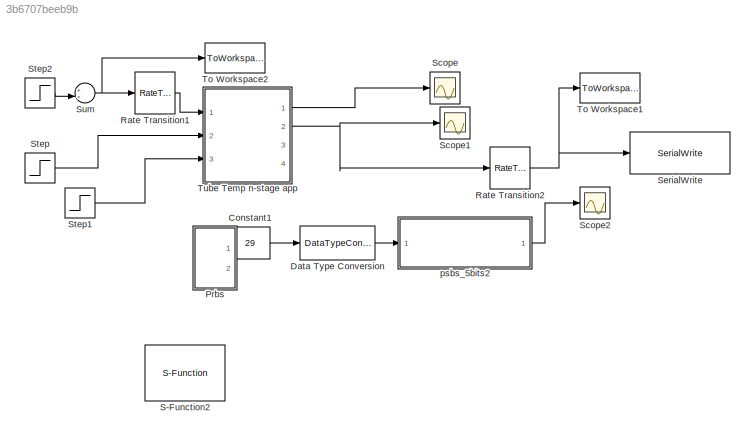
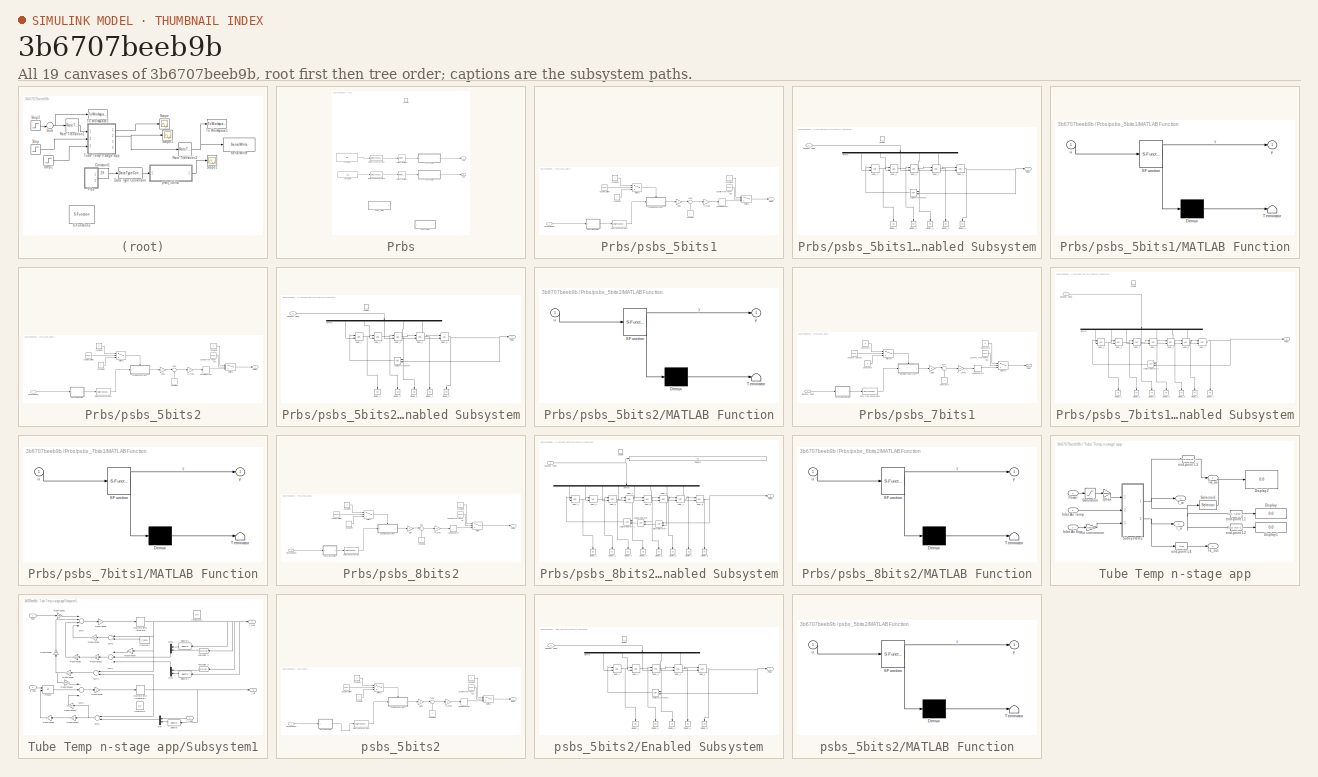
[diagram: thumbnail index - all 19 canvases of the model, root first then tree order]
MODEL slx_3b6707beeb9b
KIND model
CONFIG AbsTol = auto
CONFIG EnableMultiTasking = on
CONFIG FixedStep = auto
CONFIG MaxStep = auto
CONFIG MinStep = auto
CONFIG RelTol = 1e-3
CONFIG SampleTimeConstraint = Unconstrained
CONFIG Solver = FixedStepAuto
CONFIG SolverName = FixedStepAuto
CONFIG StartTime = 0.0
CONFIG StopTime = 20000
BLOCK [Constant] Constant1
  OutDataTypeStr = double
  SampleTime = 1
  Value = 29
BLOCK [DataTypeConversion] Data Type Conversion
  OutDataTypeStr = uint16
  RndMeth = Floor
  SaturateOnIntegerOverflow = off
BLOCK [SubSystem] Prbs
  Commented = on
  Ports = [0, 2, 1]
  RequestExecContextInheritance = off
  Variant = off
BLOCK [Constant] Prbs/Constant1
  OutDataTypeStr = double
  SampleTime = 0.1
  Value = 29
BLOCK [Constant] Prbs/Constant2
  OutDataTypeStr = double
  SampleTime = 0.1
  Value = 30
BLOCK [DataTypeConversion] Prbs/Data Type Conversion
  OutDataTypeStr = uint16
  RndMeth = Floor
  SaturateOnIntegerOverflow = off
BLOCK [DataTypeConversion] Prbs/Data Type Conversion2
  OutDataTypeStr = uint16
  RndMeth = Floor
  SaturateOnIntegerOverflow = off
BLOCK [EnablePort] Prbs/Enable
  Ports = []
BLOCK [Outport] Prbs/Out1
  IconDisplay = Port number
BLOCK [Outport] Prbs/Out2
  IconDisplay = Port number
  Port = 2
BLOCK [RateTransition] Prbs/Rate Transition1
  OutPortSampleTime = 0.1
BLOCK [RateTransition] Prbs/Rate Transition2
  OutPortSampleTime = 0.1
BLOCK [SubSystem] Prbs/psbs_5bits1
  Ports = [1, 1]
  RequestExecContextInheritance = off
  Variant = off
BLOCK [Gain] Prbs/psbs_5bits1/+//- Level1
  Gain = Lv
  OutDataTypeStr = Inherit: Inherit via internal rule
  ParamDataTypeStr = Inherit: Inherit via internal rule
  SampleTime = T
  SaturateOnIntegerOverflow = off
BLOCK [Constant] Prbs/psbs_5bits1/Constant2
  SampleTime = T
BLOCK [Constant] Prbs/psbs_5bits1/Constant4
  SampleTime = T
  Value = 0
BLOCK [Constant] Prbs/psbs_5bits1/Constant5
  SampleTime = T
  Value = 0
BLOCK [Constant] Prbs/psbs_5bits1/Constant6
  SampleTime = T
BLOCK [Reference] Prbs/psbs_5bits1/Counter Free-Running1  REF=simulink/Sources/Counter
Free-Running
  Ports = [0, 1]
  SourceBlock = simulink/Sources/Counter\nFree-Running
  SourceType = Counter Free-Running
BLOCK [Reference] Prbs/psbs_5bits1/Counter Limited  REF=simulink/Sources/Counter
Limited
  Ports = [0, 1]
  SourceBlock = simulink/Sources/Counter\nLimited
  SourceType = Counter Limited
BLOCK [DataTypeConversion] Prbs/psbs_5bits1/Data Type Conversion1
  OutDataTypeStr = int16
  RndMeth = Floor
  SaturateOnIntegerOverflow = off
BLOCK [SubSystem] Prbs/psbs_5bits1/Enabled Subsystem
  Ports = [1, 1, 1]
  RequestExecContextInheritance = off
  TreatAsAtomicUnit = on
  Variant = off
BLOCK [Demux] Prbs/psbs_5bits1/Enabled Subsystem/Demux
  DisplayOption = bar
  Outputs = 5
  Ports = [1, 5]
BLOCK [Display] Prbs/psbs_5bits1/Enabled Subsystem/Display_1
  Decimation = 1
  Ports = [1]
BLOCK [Display] Prbs/psbs_5bits1/Enabled Subsystem/Display_2
  Decimation = 1
  Ports = [1]
BLOCK [Display] Prbs/psbs_5bits1/Enabled Subsystem/Display_3
  Decimation = 1
  Ports = [1]
BLOCK [Display] Prbs/psbs_5bits1/Enabled Subsystem/Display_4
  Decimation = 1
  Ports = [1]
BLOCK [Display] Prbs/psbs_5bits1/Enabled Subsystem/Display_5
  Decimation = 1
  Ports = [1]
BLOCK [EnablePort] Prbs/psbs_5bits1/Enabled Subsystem/Enable
  Ports = []
BLOCK [Logic] Prbs/psbs_5bits1/Enabled Subsystem/Logical Operator2
  AllPortsSameDT = off
  Operator = XOR
  OutDataTypeStr = fixdt(1,16)
  Ports = [2, 1]
  SampleTime = T
BLOCK [Outport] Prbs/psbs_5bits1/Enabled Subsystem/PRBS
  IconDisplay = Port number
BLOCK [Inport] Prbs/psbs_5bits1/Enabled Subsystem/Random Seed
  IconDisplay = Port number
  OutDataTypeStr = int16
BLOCK [Reference] Prbs/psbs_5bits1/Enabled Subsystem/delay_1  REF=simulink/Additional Math
& Discrete/Additional
Discrete/Unit Delay
External IC
  Ports = [2, 1]
  SourceBlock = simulink/Additional Math\n& Discrete/Additional\nDiscrete/Unit Delay\nExternal IC
  SourceType = Unit Delay External Initial Condition
BLOCK [Reference] Prbs/psbs_5bits1/Enabled Subsystem/delay_2  REF=simulink/Additional Math
& Discrete/Additional
Discrete/Unit Delay
External IC
  Ports = [2, 1]
  SourceBlock = simulink/Additional Math\n& Discrete/Additional\nDiscrete/Unit Delay\nExternal IC
  SourceType = Unit Delay External Initial Condition
BLOCK [Reference] Prbs/psbs_5bits1/Enabled Subsystem/delay_3  REF=simulink/Additional Math
& Discrete/Additional
Discrete/Unit Delay
External IC
  Ports = [2, 1]
  SourceBlock = simulink/Additional Math\n& Discrete/Additional\nDiscrete/Unit Delay\nExternal IC
  SourceType = Unit Delay External Initial Condition
BLOCK [Reference] Prbs/psbs_5bits1/Enabled Subsystem/delay_4  REF=simulink/Additional Math
& Discrete/Additional
Discrete/Unit Delay
External IC
  Ports = [2, 1]
  SourceBlock = simulink/Additional Math\n& Discrete/Additional\nDiscrete/Unit Delay\nExternal IC
  SourceType = Unit Delay External Initial Condition
BLOCK [Reference] Prbs/psbs_5bits1/Enabled Subsystem/delay_5  REF=simulink/Additional Math
& Discrete/Additional
Discrete/Unit Delay
External IC
  Ports = [2, 1]
  SourceBlock = simulink/Additional Math\n& Discrete/Additional\nDiscrete/Unit Delay\nExternal IC
  SourceType = Unit Delay External Initial Condition
BLOCK [Gain] Prbs/psbs_5bits1/Gain1
  Gain = 2
  OutDataTypeStr = Inherit: Inherit via internal rule
  ParamDataTypeStr = Inherit: Inherit via internal rule
  SampleTime = T
  SaturateOnIntegerOverflow = off
BLOCK [Delay] Prbs/psbs_5bits1/LeadingZeros1
  DelayLength = Lz/T
  InitialCondition = 0
  InputPortMap = u0
  Ports = [1, 1]
  SampleTime = T
BLOCK [SubSystem] Prbs/psbs_5bits1/MATLAB Function
  ErrorFcn = Stateflow.Translate.translate
  PermitHierarchicalResolution = ExplicitOnly
  Ports = [1, 1]
  RequestExecContextInheritance = off
  SFBlockType = MATLAB Function
  TreatAsAtomicUnit = on
  Variant = off
BLOCK [Demux] Prbs/psbs_5bits1/MATLAB Function/ Demux 
  Outputs = 1
  Ports = [1, 1]
BLOCK [S-Function] Prbs/psbs_5bits1/MATLAB Function/ SFunction 
  EnableBusSupport = on
  FunctionName = sf_sfun
  PortCounts = [1 2]
  Ports = [1, 2]
  SFcnIsStateOwnerBlock = off
  SFunctionDeploymentMode = off
  Tag = Stateflow S-Function Temp_controlSysid 4
BLOCK [Terminator] Prbs/psbs_5bits1/MATLAB Function/ Terminator 
BLOCK [Inport] Prbs/psbs_5bits1/MATLAB Function/u
  IconDisplay = Port number
BLOCK [Outport] Prbs/psbs_5bits1/MATLAB Function/y
  IconDisplay = Port number
BLOCK [Outport] Prbs/psbs_5bits1/PRBS
  IconDisplay = Port number
BLOCK [Inport] Prbs/psbs_5bits1/Random Seed
  IconDisplay = Port number
  OutDataTypeStr = uint16
BLOCK [Sum] Prbs/psbs_5bits1/Sum1
  IconShape = round
  InputSameDT = off
  Inputs = |+-
  OutDataTypeStr = Inherit: Inherit via internal rule
  Ports = [2, 1]
  SampleTime = T
  SaturateOnIntegerOverflow = off
BLOCK [Switch] Prbs/psbs_5bits1/Switch1
  InputSameDT = off
  SampleTime = T
  SaturateOnIntegerOverflow = off
  Threshold = (Lz+(((Nc*(2^5-1))*Tsw)/T))
BLOCK [Switch] Prbs/psbs_5bits1/Switch2
  Criteria = u2 ~= 0
  InputSameDT = off
  SampleTime = T
  SaturateOnIntegerOverflow = off
  Threshold = Tsw/T
BLOCK [SubSystem] Prbs/psbs_5bits2
  Ports = [1, 1]
  RequestExecContextInheritance = off
  Variant = off
BLOCK [Gain] Prbs/psbs_5bits2/+//- Level1
  Gain = Lv
  OutDataTypeStr = Inherit: Inherit via internal rule
  ParamDataTypeStr = Inherit: Inherit via internal rule
  SampleTime = T
  SaturateOnIntegerOverflow = off
BLOCK [Constant] Prbs/psbs_5bits2/Constant2
  SampleTime = T
BLOCK [Constant] Prbs/psbs_5bits2/Constant4
  SampleTime = T
  Value = 0
BLOCK [Constant] Prbs/psbs_5bits2/Constant5
  SampleTime = T
  Value = 0
BLOCK [Constant] Prbs/psbs_5bits2/Constant6
  SampleTime = T
BLOCK [Reference] Prbs/psbs_5bits2/Counter Free-Running1  REF=simulink/Sources/Counter
Free-Running
  Ports = [0, 1]
  SourceBlock = simulink/Sources/Counter\nFree-Running
  SourceType = Counter Free-Running
BLOCK [Reference] Prbs/psbs_5bits2/Counter Limited  REF=simulink/Sources/Counter
Limited
  Ports = [0, 1]
  SourceBlock = simulink/Sources/Counter\nLimited
  SourceType = Counter Limited
BLOCK [DataTypeConversion] Prbs/psbs_5bits2/Data Type Conversion1
  OutDataTypeStr = int16
  RndMeth = Floor
  SaturateOnIntegerOverflow = off
BLOCK [SubSystem] Prbs/psbs_5bits2/Enabled Subsystem
  Ports = [1, 1, 1]
  RequestExecContextInheritance = off
  TreatAsAtomicUnit = on
  Variant = off
BLOCK [Demux] Prbs/psbs_5bits2/Enabled Subsystem/Demux
  DisplayOption = bar
  Outputs = 5
  Ports = [1, 5]
BLOCK [Display] Prbs/psbs_5bits2/Enabled Subsystem/Display_1
  Decimation = 1
  Ports = [1]
BLOCK [Display] Prbs/psbs_5bits2/Enabled Subsystem/Display_2
  Decimation = 1
  Ports = [1]
BLOCK [Display] Prbs/psbs_5bits2/Enabled Subsystem/Display_3
  Decimation = 1
  Ports = [1]
BLOCK [Display] Prbs/psbs_5bits2/Enabled Subsystem/Display_4
  Decimation = 1
  Ports = [1]
BLOCK [Display] Prbs/psbs_5bits2/Enabled Subsystem/Display_5
  Decimation = 1
  Ports = [1]
BLOCK [EnablePort] Prbs/psbs_5bits2/Enabled Subsystem/Enable
  Ports = []
BLOCK [Logic] Prbs/psbs_5bits2/Enabled Subsystem/Logical Operator2
  AllPortsSameDT = off
  Operator = XOR
  OutDataTypeStr = fixdt(1,16)
  Ports = [2, 1]
  SampleTime = T
BLOCK [Outport] Prbs/psbs_5bits2/Enabled Subsystem/PRBS
  IconDisplay = Port number
BLOCK [Inport] Prbs/psbs_5bits2/Enabled Subsystem/Random Seed
  IconDisplay = Port number
  OutDataTypeStr = int16
BLOCK [Reference] Prbs/psbs_5bits2/Enabled Subsystem/delay_1  REF=simulink/Additional Math
& Discrete/Additional
Discrete/Unit Delay
External IC
  Ports = [2, 1]
  SourceBlock = simulink/Additional Math\n& Discrete/Additional\nDiscrete/Unit Delay\nExternal IC
  SourceType = Unit Delay External Initial Condition
BLOCK [Reference] Prbs/psbs_5bits2/Enabled Subsystem/delay_2  REF=simulink/Additional Math
& Discrete/Additional
Discrete/Unit Delay
External IC
  Ports = [2, 1]
  SourceBlock = simulink/Additional Math\n& Discrete/Additional\nDiscrete/Unit Delay\nExternal IC
  SourceType = Unit Delay External Initial Condition
BLOCK [Reference] Prbs/psbs_5bits2/Enabled Subsystem/delay_3  REF=simulink/Additional Math
& Discrete/Additional
Discrete/Unit Delay
External IC
  Ports = [2, 1]
  SourceBlock = simulink/Additional Math\n& Discrete/Additional\nDiscrete/Unit Delay\nExternal IC
  SourceType = Unit Delay External Initial Condition
BLOCK [Reference] Prbs/psbs_5bits2/Enabled Subsystem/delay_4  REF=simulink/Additional Math
& Discrete/Additional
Discrete/Unit Delay
External IC
  Ports = [2, 1]
  SourceBlock = simulink/Additional Math\n& Discrete/Additional\nDiscrete/Unit Delay\nExternal IC
  SourceType = Unit Delay External Initial Condition
BLOCK [Reference] Prbs/psbs_5bits2/Enabled Subsystem/delay_5  REF=simulink/Additional Math
& Discrete/Additional
Discrete/Unit Delay
External IC
  Ports = [2, 1]
  SourceBlock = simulink/Additional Math\n& Discrete/Additional\nDiscrete/Unit Delay\nExternal IC
  SourceType = Unit Delay External Initial Condition
BLOCK [Gain] Prbs/psbs_5bits2/Gain1
  Gain = 2
  OutDataTypeStr = Inherit: Inherit via internal rule
  ParamDataTypeStr = Inherit: Inherit via internal rule
  SampleTime = T
  SaturateOnIntegerOverflow = off
BLOCK [Delay] Prbs/psbs_5bits2/LeadingZeros1
  DelayLength = Lz/T
  InitialCondition = 0
  InputPortMap = u0
  Ports = [1, 1]
  SampleTime = T
BLOCK [SubSystem] Prbs/psbs_5bits2/MATLAB Function
  ErrorFcn = Stateflow.Translate.translate
  PermitHierarchicalResolution = ExplicitOnly
  Ports = [1, 1]
  RequestExecContextInheritance = off
  SFBlockType = MATLAB Function
  TreatAsAtomicUnit = on
  Variant = off
BLOCK [Demux] Prbs/psbs_5bits2/MATLAB Function/ Demux 
  Outputs = 1
  Ports = [1, 1]
BLOCK [S-Function] Prbs/psbs_5bits2/MATLAB Function/ SFunction 
  EnableBusSupport = on
  FunctionName = sf_sfun
  PortCounts = [1 2]
  Ports = [1, 2]
  SFcnIsStateOwnerBlock = off
  SFunctionDeploymentMode = off
  Tag = Stateflow S-Function Temp_controlSysid 1
BLOCK [Terminator] Prbs/psbs_5bits2/MATLAB Function/ Terminator 
BLOCK [Inport] Prbs/psbs_5bits2/MATLAB Function/u
  IconDisplay = Port number
BLOCK [Outport] Prbs/psbs_5bits2/MATLAB Function/y
  IconDisplay = Port number
BLOCK [Outport] Prbs/psbs_5bits2/PRBS
  IconDisplay = Port number
BLOCK [Inport] Prbs/psbs_5bits2/Random Seed
  IconDisplay = Port number
  OutDataTypeStr = uint16
BLOCK [Sum] Prbs/psbs_5bits2/Sum1
  IconShape = round
  InputSameDT = off
  Inputs = |+-
  OutDataTypeStr = Inherit: Inherit via internal rule
  Ports = [2, 1]
  SampleTime = T
  SaturateOnIntegerOverflow = off
BLOCK [Switch] Prbs/psbs_5bits2/Switch1
  InputSameDT = off
  SampleTime = T
  SaturateOnIntegerOverflow = off
  Threshold = (Lz+(((Nc*(2^5-1))*Tsw)/T))
BLOCK [Switch] Prbs/psbs_5bits2/Switch2
  Criteria = u2 ~= 0
  InputSameDT = off
  SampleTime = T
  SaturateOnIntegerOverflow = off
  Threshold = Tsw/T
BLOCK [SubSystem] Prbs/psbs_7bits1
  Commented = on
  Ports = [1, 1]
  RequestExecContextInheritance = off
  Variant = off
BLOCK [Gain] Prbs/psbs_7bits1/+//- Level1
  Gain = Lv
  OutDataTypeStr = Inherit: Inherit via internal rule
  ParamDataTypeStr = Inherit: Inherit via internal rule
  SampleTime = T
  SaturateOnIntegerOverflow = off
BLOCK [Constant] Prbs/psbs_7bits1/Constant2
  SampleTime = T
BLOCK [Constant] Prbs/psbs_7bits1/Constant4
  SampleTime = T
  Value = 0
BLOCK [Constant] Prbs/psbs_7bits1/Constant5
  SampleTime = T
  Value = 0
BLOCK [Constant] Prbs/psbs_7bits1/Constant6
  SampleTime = T
BLOCK [Reference] Prbs/psbs_7bits1/Counter Free-Running1  REF=simulink/Sources/Counter
Free-Running
  Ports = [0, 1]
  SourceBlock = simulink/Sources/Counter\nFree-Running
  SourceType = Counter Free-Running
BLOCK [Reference] Prbs/psbs_7bits1/Counter Limited  REF=simulink/Sources/Counter
Limited
  Ports = [0, 1]
  SourceBlock = simulink/Sources/Counter\nLimited
  SourceType = Counter Limited
BLOCK [DataTypeConversion] Prbs/psbs_7bits1/Data Type Conversion1
  OutDataTypeStr = int16
  RndMeth = Floor
  SaturateOnIntegerOverflow = off
BLOCK [SubSystem] Prbs/psbs_7bits1/Enabled Subsystem
  Ports = [1, 1, 1]
  RequestExecContextInheritance = off
  TreatAsAtomicUnit = on
  Variant = off
BLOCK [Demux] Prbs/psbs_7bits1/Enabled Subsystem/Demux
  DisplayOption = bar
  Outputs = 7
  Ports = [1, 7]
BLOCK [Display] Prbs/psbs_7bits1/Enabled Subsystem/Display_1
  Decimation = 1
  Ports = [1]
BLOCK [Display] Prbs/psbs_7bits1/Enabled Subsystem/Display_2
  Decimation = 1
  Ports = [1]
BLOCK [Display] Prbs/psbs_7bits1/Enabled Subsystem/Display_3
  Decimation = 1
  Ports = [1]
BLOCK [Display] Prbs/psbs_7bits1/Enabled Subsystem/Display_4
  Decimation = 1
  Ports = [1]
BLOCK [Display] Prbs/psbs_7bits1/Enabled Subsystem/Display_5
  Decimation = 1
  Ports = [1]
BLOCK [Display] Prbs/psbs_7bits1/Enabled Subsystem/Display_6
  Decimation = 1
  Ports = [1]
BLOCK [Display] Prbs/psbs_7bits1/Enabled Subsystem/Display_7
  Decimation = 1
  Ports = [1]
BLOCK [EnablePort] Prbs/psbs_7bits1/Enabled Subsystem/Enable
  Ports = []
BLOCK [Logic] Prbs/psbs_7bits1/Enabled Subsystem/Logical Operator2
  AllPortsSameDT = off
  Operator = XOR
  OutDataTypeStr = fixdt(1,16)
  Ports = [2, 1]
  SampleTime = T
BLOCK [Outport] Prbs/psbs_7bits1/Enabled Subsystem/PRBS
  IconDisplay = Port number
BLOCK [Inport] Prbs/psbs_7bits1/Enabled Subsystem/Random Seed
  IconDisplay = Port number
  OutDataTypeStr = int16
BLOCK [Reference] Prbs/psbs_7bits1/Enabled Subsystem/delay_1  REF=simulink/Additional Math
& Discrete/Additional
Discrete/Unit Delay
External IC
  Ports = [2, 1]
  SourceBlock = simulink/Additional Math\n& Discrete/Additional\nDiscrete/Unit Delay\nExternal IC
  SourceType = Unit Delay External Initial Condition
BLOCK [Reference] Prbs/psbs_7bits1/Enabled Subsystem/delay_2  REF=simulink/Additional Math
& Discrete/Additional
Discrete/Unit Delay
External IC
  Ports = [2, 1]
  SourceBlock = simulink/Additional Math\n& Discrete/Additional\nDiscrete/Unit Delay\nExternal IC
  SourceType = Unit Delay External Initial Condition
BLOCK [Reference] Prbs/psbs_7bits1/Enabled Subsystem/delay_3  REF=simulink/Additional Math
& Discrete/Additional
Discrete/Unit Delay
External IC
  Ports = [2, 1]
  SourceBlock = simulink/Additional Math\n& Discrete/Additional\nDiscrete/Unit Delay\nExternal IC
  SourceType = Unit Delay External Initial Condition
BLOCK [Reference] Prbs/psbs_7bits1/Enabled Subsystem/delay_4  REF=simulink/Additional Math
& Discrete/Additional
Discrete/Unit Delay
External IC
  Ports = [2, 1]
  SourceBlock = simulink/Additional Math\n& Discrete/Additional\nDiscrete/Unit Delay\nExternal IC
  SourceType = Unit Delay External Initial Condition
BLOCK [Reference] Prbs/psbs_7bits1/Enabled Subsystem/delay_5  REF=simulink/Additional Math
& Discrete/Additional
Discrete/Unit Delay
External IC
  Ports = [2, 1]
  SourceBlock = simulink/Additional Math\n& Discrete/Additional\nDiscrete/Unit Delay\nExternal IC
  SourceType = Unit Delay External Initial Condition
BLOCK [Reference] Prbs/psbs_7bits1/Enabled Subsystem/delay_6  REF=simulink/Additional Math
& Discrete/Additional
Discrete/Unit Delay
External IC
  Ports = [2, 1]
  SourceBlock = simulink/Additional Math\n& Discrete/Additional\nDiscrete/Unit Delay\nExternal IC
  SourceType = Unit Delay External Initial Condition
BLOCK [Reference] Prbs/psbs_7bits1/Enabled Subsystem/delay_7  REF=simulink/Additional Math
& Discrete/Additional
Discrete/Unit Delay
External IC
  Ports = [2, 1]
  SourceBlock = simulink/Additional Math\n& Discrete/Additional\nDiscrete/Unit Delay\nExternal IC
  SourceType = Unit Delay External Initial Condition
BLOCK [Gain] Prbs/psbs_7bits1/Gain1
  Gain = 2
  OutDataTypeStr = Inherit: Inherit via internal rule
  ParamDataTypeStr = Inherit: Inherit via internal rule
  SampleTime = T
  SaturateOnIntegerOverflow = off
BLOCK [Delay] Prbs/psbs_7bits1/LeadingZeros1
  DelayLength = Lz/T
  InitialCondition = 0
  InputPortMap = u0
  Ports = [1, 1]
  SampleTime = T
BLOCK [SubSystem] Prbs/psbs_7bits1/MATLAB Function
  ErrorFcn = Stateflow.Translate.translate
  PermitHierarchicalResolution = ExplicitOnly
  Ports = [1, 1]
  RequestExecContextInheritance = off
  SFBlockType = MATLAB Function
  TreatAsAtomicUnit = on
  Variant = off
BLOCK [Demux] Prbs/psbs_7bits1/MATLAB Function/ Demux 
  Outputs = 1
  Ports = [1, 1]
BLOCK [S-Function] Prbs/psbs_7bits1/MATLAB Function/ SFunction 
  EnableBusSupport = on
  FunctionName = sf_sfun
  PortCounts = [1 2]
  Ports = [1, 2]
  SFcnIsStateOwnerBlock = off
  SFunctionDeploymentMode = off
  Tag = Stateflow S-Function Temp_controlSysid 5
BLOCK [Terminator] Prbs/psbs_7bits1/MATLAB Function/ Terminator 
BLOCK [Inport] Prbs/psbs_7bits1/MATLAB Function/u
  IconDisplay = Port number
BLOCK [Outport] Prbs/psbs_7bits1/MATLAB Function/y
  IconDisplay = Port number
BLOCK [Outport] Prbs/psbs_7bits1/PRBS
  IconDisplay = Port number
BLOCK [Inport] Prbs/psbs_7bits1/Random Seed
  IconDisplay = Port number
  OutDataTypeStr = uint16
BLOCK [Sum] Prbs/psbs_7bits1/Sum1
  IconShape = round
  InputSameDT = off
  Inputs = |+-
  OutDataTypeStr = Inherit: Inherit via internal rule
  Ports = [2, 1]
  SampleTime = T
  SaturateOnIntegerOverflow = off
BLOCK [Switch] Prbs/psbs_7bits1/Switch1
  InputSameDT = off
  SampleTime = T
  SaturateOnIntegerOverflow = off
  Threshold = (Lz+(((Nc*(2^7-1))*Tsw)/T))
BLOCK [Switch] Prbs/psbs_7bits1/Switch2
  Criteria = u2 ~= 0
  InputSameDT = off
  SampleTime = T
  SaturateOnIntegerOverflow = off
  Threshold = Tsw/T
BLOCK [SubSystem] Prbs/psbs_8bits2
  Commented = on
  Ports = [1, 1]
  RequestExecContextInheritance = off
  Variant = off
BLOCK [Gain] Prbs/psbs_8bits2/+//- Level
  Gain = Lv
  OutDataTypeStr = Inherit: Inherit via internal rule
  ParamDataTypeStr = Inherit: Inherit via internal rule
  SampleTime = T
  SaturateOnIntegerOverflow = off
BLOCK [Constant] Prbs/psbs_8bits2/Constant1
  SampleTime = T
BLOCK [Constant] Prbs/psbs_8bits2/Constant2
  SampleTime = T
  Value = 0
BLOCK [Constant] Prbs/psbs_8bits2/Constant3
  SampleTime = T
  Value = 0
BLOCK [Constant] Prbs/psbs_8bits2/Constant4
  SampleTime = T
BLOCK [Reference] Prbs/psbs_8bits2/Counter Free-Running  REF=simulink/Sources/Counter
Free-Running
  Ports = [0, 1]
  SourceBlock = simulink/Sources/Counter\nFree-Running
  SourceType = Counter Free-Running
BLOCK [Reference] Prbs/psbs_8bits2/Counter Limited  REF=simulink/Sources/Counter
Limited
  Ports = [0, 1]
  SourceBlock = simulink/Sources/Counter\nLimited
  SourceType = Counter Limited
BLOCK [DataTypeConversion] Prbs/psbs_8bits2/Data Type Conversion
  OutDataTypeStr = int16
  RndMeth = Floor
  SaturateOnIntegerOverflow = off
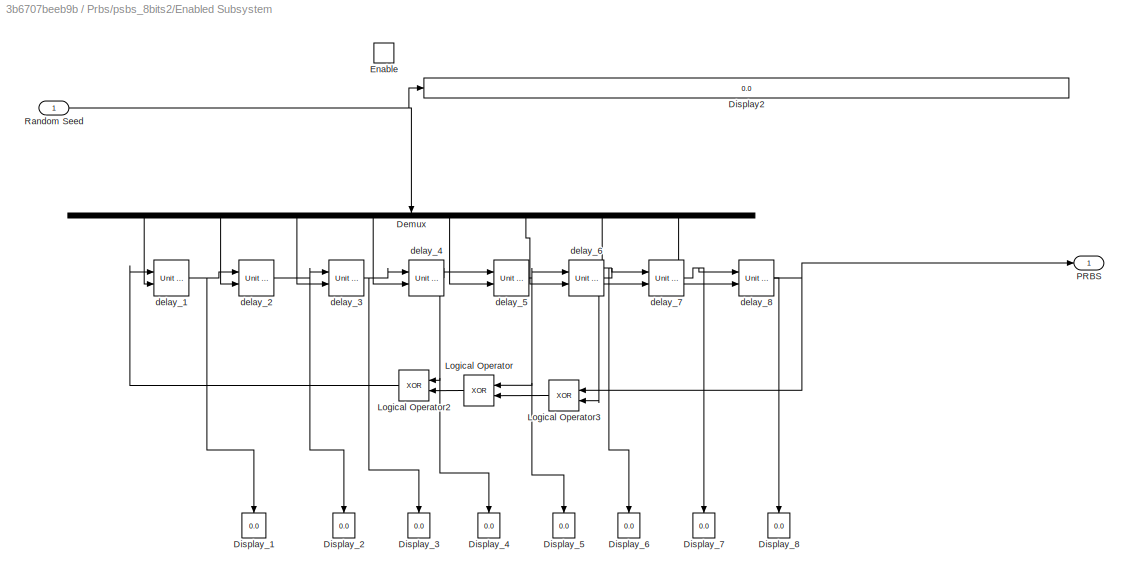
BLOCK [SubSystem] Prbs/psbs_8bits2/Enabled Subsystem
  Ports = [1, 1, 1]
  RequestExecContextInheritance = off
  TreatAsAtomicUnit = on
  Variant = off
BLOCK [Demux] Prbs/psbs_8bits2/Enabled Subsystem/Demux
  DisplayOption = bar
  Outputs = 8
  Ports = [1, 8]
BLOCK [Display] Prbs/psbs_8bits2/Enabled Subsystem/Display2
  Decimation = 1
  Ports = [1]
BLOCK [Display] Prbs/psbs_8bits2/Enabled Subsystem/Display_1
  Decimation = 1
  Ports = [1]
BLOCK [Display] Prbs/psbs_8bits2/Enabled Subsystem/Display_2
  Decimation = 1
  Ports = [1]
BLOCK [Display] Prbs/psbs_8bits2/Enabled Subsystem/Display_3
  Decimation = 1
  Ports = [1]
BLOCK [Display] Prbs/psbs_8bits2/Enabled Subsystem/Display_4
  Decimation = 1
  Ports = [1]
BLOCK [Display] Prbs/psbs_8bits2/Enabled Subsystem/Display_5
  Decimation = 1
  Ports = [1]
BLOCK [Display] Prbs/psbs_8bits2/Enabled Subsystem/Display_6
  Decimation = 1
  Ports = [1]
BLOCK [Display] Prbs/psbs_8bits2/Enabled Subsystem/Display_7
  Decimation = 1
  Ports = [1]
BLOCK [Display] Prbs/psbs_8bits2/Enabled Subsystem/Display_8
  Decimation = 1
  Ports = [1]
BLOCK [EnablePort] Prbs/psbs_8bits2/Enabled Subsystem/Enable
  Ports = []
BLOCK [Logic] Prbs/psbs_8bits2/Enabled Subsystem/Logical Operator
  AllPortsSameDT = off
  Operator = XOR
  OutDataTypeStr = fixdt(1,16)
  Ports = [2, 1]
  SampleTime = T
BLOCK [Logic] Prbs/psbs_8bits2/Enabled Subsystem/Logical Operator2
  AllPortsSameDT = off
  Operator = XOR
  OutDataTypeStr = fixdt(1,16)
  Ports = [2, 1]
  SampleTime = T
BLOCK [Logic] Prbs/psbs_8bits2/Enabled Subsystem/Logical Operator3
  AllPortsSameDT = off
  Operator = XOR
  OutDataTypeStr = fixdt(1,16)
  Ports = [2, 1]
  SampleTime = T
BLOCK [Outport] Prbs/psbs_8bits2/Enabled Subsystem/PRBS
  IconDisplay = Port number
BLOCK [Inport] Prbs/psbs_8bits2/Enabled Subsystem/Random Seed
  IconDisplay = Port number
  OutDataTypeStr = int16
BLOCK [Reference] Prbs/psbs_8bits2/Enabled Subsystem/delay_1  REF=simulink/Additional Math
& Discrete/Additional
Discrete/Unit Delay
External IC
  Ports = [2, 1]
  SourceBlock = simulink/Additional Math\n& Discrete/Additional\nDiscrete/Unit Delay\nExternal IC
  SourceType = Unit Delay External Initial Condition
BLOCK [Reference] Prbs/psbs_8bits2/Enabled Subsystem/delay_2  REF=simulink/Additional Math
& Discrete/Additional
Discrete/Unit Delay
External IC
  Ports = [2, 1]
  SourceBlock = simulink/Additional Math\n& Discrete/Additional\nDiscrete/Unit Delay\nExternal IC
  SourceType = Unit Delay External Initial Condition
BLOCK [Reference] Prbs/psbs_8bits2/Enabled Subsystem/delay_3  REF=simulink/Additional Math
& Discrete/Additional
Discrete/Unit Delay
External IC
  Ports = [2, 1]
  SourceBlock = simulink/Additional Math\n& Discrete/Additional\nDiscrete/Unit Delay\nExternal IC
  SourceType = Unit Delay External Initial Condition
BLOCK [Reference] Prbs/psbs_8bits2/Enabled Subsystem/delay_4  REF=simulink/Additional Math
& Discrete/Additional
Discrete/Unit Delay
External IC
  Ports = [2, 1]
  SourceBlock = simulink/Additional Math\n& Discrete/Additional\nDiscrete/Unit Delay\nExternal IC
  SourceType = Unit Delay External Initial Condition
BLOCK [Reference] Prbs/psbs_8bits2/Enabled Subsystem/delay_5  REF=simulink/Additional Math
& Discrete/Additional
Discrete/Unit Delay
External IC
  Ports = [2, 1]
  SourceBlock = simulink/Additional Math\n& Discrete/Additional\nDiscrete/Unit Delay\nExternal IC
  SourceType = Unit Delay External Initial Condition
BLOCK [Reference] Prbs/psbs_8bits2/Enabled Subsystem/delay_6  REF=simulink/Additional Math
& Discrete/Additional
Discrete/Unit Delay
External IC
  Ports = [2, 1]
  SourceBlock = simulink/Additional Math\n& Discrete/Additional\nDiscrete/Unit Delay\nExternal IC
  SourceType = Unit Delay External Initial Condition
BLOCK [Reference] Prbs/psbs_8bits2/Enabled Subsystem/delay_7  REF=simulink/Additional Math
& Discrete/Additional
Discrete/Unit Delay
External IC
  Ports = [2, 1]
  SourceBlock = simulink/Additional Math\n& Discrete/Additional\nDiscrete/Unit Delay\nExternal IC
  SourceType = Unit Delay External Initial Condition
BLOCK [Reference] Prbs/psbs_8bits2/Enabled Subsystem/delay_8  REF=simulink/Additional Math
& Discrete/Additional
Discrete/Unit Delay
External IC
  Ports = [2, 1]
  SourceBlock = simulink/Additional Math\n& Discrete/Additional\nDiscrete/Unit Delay\nExternal IC
  SourceType = Unit Delay External Initial Condition
BLOCK [Gain] Prbs/psbs_8bits2/Gain
  Gain = 2
  OutDataTypeStr = Inherit: Inherit via internal rule
  ParamDataTypeStr = Inherit: Inherit via internal rule
  SampleTime = T
  SaturateOnIntegerOverflow = off
BLOCK [Delay] Prbs/psbs_8bits2/LeadingZeros
  DelayLength = Lz/T
  InitialCondition = 0
  InputPortMap = u0
  Ports = [1, 1]
  SampleTime = T
BLOCK [SubSystem] Prbs/psbs_8bits2/MATLAB Function
  ErrorFcn = Stateflow.Translate.translate
  PermitHierarchicalResolution = ExplicitOnly
  Ports = [1, 1]
  RequestExecContextInheritance = off
  SFBlockType = MATLAB Function
  TreatAsAtomicUnit = on
  Variant = off
BLOCK [Demux] Prbs/psbs_8bits2/MATLAB Function/ Demux 
  Outputs = 1
  Ports = [1, 1]
BLOCK [S-Function] Prbs/psbs_8bits2/MATLAB Function/ SFunction 
  EnableBusSupport = on
  FunctionName = sf_sfun
  PortCounts = [1 2]
  Ports = [1, 2]
  SFcnIsStateOwnerBlock = off
  SFunctionDeploymentMode = off
  Tag = Stateflow S-Function Temp_controlSysid 7
BLOCK [Terminator] Prbs/psbs_8bits2/MATLAB Function/ Terminator 
BLOCK [Inport] Prbs/psbs_8bits2/MATLAB Function/u
  IconDisplay = Port number
BLOCK [Outport] Prbs/psbs_8bits2/MATLAB Function/y
  IconDisplay = Port number
BLOCK [Outport] Prbs/psbs_8bits2/PRBS
  IconDisplay = Port number
BLOCK [Inport] Prbs/psbs_8bits2/Random Seed
  IconDisplay = Port number
  OutDataTypeStr = uint16
  SampleTime = 0.1
BLOCK [Sum] Prbs/psbs_8bits2/Sum
  IconShape = round
  InputSameDT = off
  Inputs = |+-
  OutDataTypeStr = Inherit: Inherit via internal rule
  Ports = [2, 1]
  SampleTime = T
  SaturateOnIntegerOverflow = off
BLOCK [Switch] Prbs/psbs_8bits2/Switch
  InputSameDT = off
  SampleTime = T
  SaturateOnIntegerOverflow = off
  Threshold = (Lz+(((Nc*(2^8-1))*Tsw)/T))
BLOCK [Switch] Prbs/psbs_8bits2/Switch1
  Criteria = u2 ~= 0
  InputSameDT = off
  SampleTime = T
  SaturateOnIntegerOverflow = off
  Threshold = Tsw/T
BLOCK [RateTransition] Rate Transition1
  OutPortSampleTime = 0.05
  OutPortSampleTimeOpt = Inherit
BLOCK [RateTransition] Rate Transition2
  OutPortSampleTime = 0.05
  OutPortSampleTimeOpt = Inherit
BLOCK [S-Function] S-Function2
  EnableBusSupport = off
  FunctionName = PWMRead
  Ports = [0, 1]
  SFcnIsStateOwnerBlock = off
  SFunctionDeploymentMode = off
  SFunctionModules = PWMRead_wrapper
BLOCK [Scope] Scope
  NumInputPorts = 1
  Ports = [1]
  ScopeSpecificationString = Simulink.scopes.TimeScopeBlockCfg('CurrentConfiguration', extmgr.ConfigurationSet(extmgr.Configuration('Core','General UI',true),extmgr.Configuration('Core','Source UI',true),extmgr.Configuration('Sources','WiredSimulink',true,'DataLoggingSaveFormat','StructureWithTime','DataLoggingDecimation','1','DataLoggingDecimateData',true),extmgr.Configuration('Visuals','Time Domain',true,'SerializedDisplays...<+1732ch>
BLOCK [Scope] Scope1
  NumInputPorts = 1
  Ports = [1]
  ScopeSpecificationString = Simulink.scopes.TimeScopeBlockCfg('CurrentConfiguration', extmgr.ConfigurationSet(extmgr.Configuration('Core','General UI',true),extmgr.Configuration('Core','Source UI',true),extmgr.Configuration('Sources','WiredSimulink',true,'DataLoggingSaveFormat','StructureWithTime','DataLoggingDecimation','1','DataLoggingDecimateData',true,'DataLoggingVariableName','ScopeData1'),extmgr.Configuration('Visuals'...<+1767ch>
BLOCK [Scope] Scope2
  NumInputPorts = 1
  Ports = [1]
  ScopeSpecificationString = Simulink.scopes.TimeScopeBlockCfg('CurrentConfiguration', extmgr.ConfigurationSet(extmgr.Configuration('Core','General UI',true),extmgr.Configuration('Core','Source UI',true),extmgr.Configuration('Sources','WiredSimulink',true,'DataLoggingSaveFormat','StructureWithTime','DataLoggingDecimation','1','DataLoggingDecimateData',true,'DataLoggingVariableName','ScopeData2'),extmgr.Configuration('Visuals'...<+1733ch>
BLOCK [Reference] SerialWrite  REF=EEE481Arduino/SerialWrite
  Ports = [1]
  SourceBlock = EEE481Arduino/SerialWrite
BLOCK [Step] Step
  After = 25
  Before = 25
  SampleTime = 0
  Time = 10000
BLOCK [Step] Step1
  Before = 1
  SampleTime = 0
  Time = 5000
BLOCK [Step] Step2
  After = 0.49
  SampleTime = 1
  Time = 100
BLOCK [Sum] Sum
  IconShape = round
  InputSameDT = off
  Inputs = ++|
  OutDataTypeStr = Inherit: Inherit via internal rule
  Ports = [2, 1]
  SaturateOnIntegerOverflow = off
BLOCK [ToWorkspace] To Workspace1
  MaxDataPoints = inf
  Ports = [1]
  SampleTime = 1
  VariableName = Y
BLOCK [ToWorkspace] To Workspace2
  MaxDataPoints = inf
  Ports = [1]
  SampleTime = 1
  VariableName = U
BLOCK [SubSystem] Tube Temp n-stage app
  Ports = [3, 4]
  RequestExecContextInheritance = off
  Variant = off
BLOCK [Display] Tube Temp n-stage app/Display
  Decimation = 1
  Format = short_e
  Ports = [1]
BLOCK [Display] Tube Temp n-stage app/Display1
  Decimation = 1
  Format = short_e
  Ports = [1]
BLOCK [Display] Tube Temp n-stage app/Display2
  Decimation = 1
  Format = short_e
  Ports = [1]
BLOCK [Inport] Tube Temp n-stage app/Inlet Air Temp
  IconDisplay = Port number
  Port = 2
BLOCK [Inport] Tube Temp n-stage app/Inlet Air flow
  IconDisplay = Port number
  Port = 3
BLOCK [Inport] Tube Temp n-stage app/Power
  IconDisplay = Port number
BLOCK [Saturate] Tube Temp n-stage app/Saturation
  InputPortMap = u0
  LowerLimit = 0
  Ports = [1, 1]
  UpperLimit = 1
BLOCK [Selector] Tube Temp n-stage app/Selector3
  IndexOptions = Index vector (dialog)
  Indices = [1,2]
  InputPortWidth = n
  OutputSizes = 1
  Ports = [1, 1]
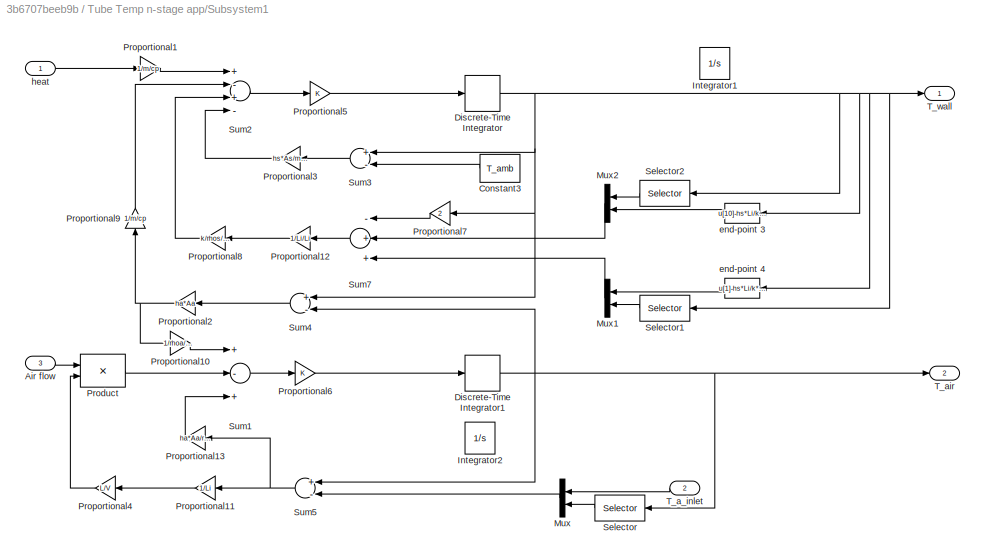
BLOCK [SubSystem] Tube Temp n-stage app/Subsystem1
  Ports = [3, 2]
  RequestExecContextInheritance = off
  Variant = off
BLOCK [Inport] Tube Temp n-stage app/Subsystem1/Air flow
  IconDisplay = Port number
  Port = 3
BLOCK [Constant] Tube Temp n-stage app/Subsystem1/Constant3
  Value = T_amb
BLOCK [DiscreteIntegrator] Tube Temp n-stage app/Subsystem1/Discrete-Time Integrator
  ICPrevOutput = DiscIntNeverNeededParam
  ICPrevScaledInput = DiscIntNeverNeededParam
  InitialCondition = T_0
  InitialConditionSetting = State (most efficient)
  Ports = [1, 1]
  SampleTime = 0.05
BLOCK [DiscreteIntegrator] Tube Temp n-stage app/Subsystem1/Discrete-Time Integrator1
  ICPrevOutput = DiscIntNeverNeededParam
  ICPrevScaledInput = DiscIntNeverNeededParam
  InitialCondition = T_a0
  InitialConditionSetting = State (most efficient)
  Ports = [1, 1]
  SampleTime = 0.05
BLOCK [Integrator] Tube Temp n-stage app/Subsystem1/Integrator1
  Commented = on
  InitialCondition = T_0
  Ports = [1, 1]
BLOCK [Integrator] Tube Temp n-stage app/Subsystem1/Integrator2
  Commented = on
  InitialCondition = T_a0
  Ports = [1, 1]
BLOCK [Mux] Tube Temp n-stage app/Subsystem1/Mux
  DisplayOption = bar
  Inputs = 2
  Ports = [2, 1]
BLOCK [Mux] Tube Temp n-stage app/Subsystem1/Mux1
  DisplayOption = bar
  Inputs = 2
  Ports = [2, 1]
BLOCK [Mux] Tube Temp n-stage app/Subsystem1/Mux2
  DisplayOption = bar
  Inputs = 2
  Ports = [2, 1]
BLOCK [Product] Tube Temp n-stage app/Subsystem1/Product
  Ports = [2, 1]
BLOCK [Gain] Tube Temp n-stage app/Subsystem1/Proportional1
  Gain = 1/m/cp
BLOCK [Gain] Tube Temp n-stage app/Subsystem1/Proportional10
  Gain = 1/rhoa/V/cpa
BLOCK [Gain] Tube Temp n-stage app/Subsystem1/Proportional11
  Gain = 1/Li
BLOCK [Gain] Tube Temp n-stage app/Subsystem1/Proportional12
  Gain = 1/Li/Li
BLOCK [Gain] Tube Temp n-stage app/Subsystem1/Proportional13
  Gain = ha*Aa/rhoa/V/cpa*0
BLOCK [Gain] Tube Temp n-stage app/Subsystem1/Proportional2
  Gain = ha*Aa
BLOCK [Gain] Tube Temp n-stage app/Subsystem1/Proportional3
  Gain = hs*As/m/cp
BLOCK [Gain] Tube Temp n-stage app/Subsystem1/Proportional4
  Gain = L/V
BLOCK [Gain] Tube Temp n-stage app/Subsystem1/Proportional5
BLOCK [Gain] Tube Temp n-stage app/Subsystem1/Proportional6
BLOCK [Gain] Tube Temp n-stage app/Subsystem1/Proportional7
  Gain = 2
BLOCK [Gain] Tube Temp n-stage app/Subsystem1/Proportional8
  Gain = k/rhos/cp
BLOCK [Gain] Tube Temp n-stage app/Subsystem1/Proportional9
  Gain = 1/m/cp
BLOCK [Selector] Tube Temp n-stage app/Subsystem1/Selector
  IndexOptions = Index vector (dialog)
  Indices = [1:n-1]
  InputPortWidth = n
  OutputSizes = 1
  Ports = [1, 1]
BLOCK [Selector] Tube Temp n-stage app/Subsystem1/Selector1
  IndexOptions = Index vector (dialog)
  Indices = [1:n-1]
  InputPortWidth = n
  OutputSizes = 1
  Ports = [1, 1]
BLOCK [Selector] Tube Temp n-stage app/Subsystem1/Selector2
  IndexOptions = Index vector (dialog)
  Indices = [2:n]
  InputPortWidth = n
  OutputSizes = 1
  Ports = [1, 1]
BLOCK [Sum] Tube Temp n-stage app/Subsystem1/Sum1
  Inputs = +-+
  Ports = [3, 1]
BLOCK [Sum] Tube Temp n-stage app/Subsystem1/Sum2
  Inputs = +-+-
  Ports = [4, 1]
BLOCK [Sum] Tube Temp n-stage app/Subsystem1/Sum3
  Inputs = +-
  Ports = [2, 1]
BLOCK [Sum] Tube Temp n-stage app/Subsystem1/Sum4
  Inputs = +-
  Ports = [2, 1]
BLOCK [Sum] Tube Temp n-stage app/Subsystem1/Sum5
  Inputs = +-
  Ports = [2, 1]
BLOCK [Sum] Tube Temp n-stage app/Subsystem1/Sum7
  Inputs = -++
  Ports = [3, 1]
BLOCK [Inport] Tube Temp n-stage app/Subsystem1/T_a_inlet
  IconDisplay = Port number
  Port = 2
BLOCK [Outport] Tube Temp n-stage app/Subsystem1/T_air
  IconDisplay = Port number
  Port = 2
BLOCK [Outport] Tube Temp n-stage app/Subsystem1/T_wall
  IconDisplay = Port number
BLOCK [Fcn] Tube Temp n-stage app/Subsystem1/end-point 3
  Expr = u[10]-hs*Li/k*(u[10]-T_amb)
BLOCK [Fcn] Tube Temp n-stage app/Subsystem1/end-point 4
  Expr = u[1]-hs*Li/k*(u[1]-T_amb)
BLOCK [Inport] Tube Temp n-stage app/Subsystem1/heat
  IconDisplay = Port number
BLOCK [Outport] Tube Temp n-stage app/T_a
  IconDisplay = Port number
  Port = 4
BLOCK [Outport] Tube Temp n-stage app/T_w
  IconDisplay = Port number
  Port = 3
BLOCK [Outport] Tube Temp n-stage app/Ta_out
  IconDisplay = Port number
  Port = 2
BLOCK [Outport] Tube Temp n-stage app/Tw_av
  IconDisplay = Port number
BLOCK [Fcn] Tube Temp n-stage app/end-point L1
  Expr = (u[1]-T_amb)*hs
BLOCK [Fcn] Tube Temp n-stage app/end-point L2
  Expr = (u[1]-u[2])/Li*k
BLOCK [Fcn] Tube Temp n-stage app/end-point L3
  Expr = (u[3]+u[5]+u[7])/3
BLOCK [Fcn] Tube Temp n-stage app/end-point L4
  Expr = u[10]
BLOCK [Gain] Tube Temp n-stage app/qmax
  Gain = 10000
BLOCK [Gain] Tube Temp n-stage app/unit conversion
  Gain = 0.001/60
BLOCK [SubSystem] psbs_5bits2
  Ports = [1, 1]
  RequestExecContextInheritance = off
  Variant = off
BLOCK [Gain] psbs_5bits2/+//- Level1
  Gain = Lv
  OutDataTypeStr = Inherit: Inherit via internal rule
  ParamDataTypeStr = Inherit: Inherit via internal rule
  SampleTime = T
  SaturateOnIntegerOverflow = off
BLOCK [Constant] psbs_5bits2/Constant2
  SampleTime = T
BLOCK [Constant] psbs_5bits2/Constant4
  SampleTime = T
  Value = 0
BLOCK [Constant] psbs_5bits2/Constant5
  SampleTime = T
  Value = 0
BLOCK [Constant] psbs_5bits2/Constant6
  SampleTime = T
BLOCK [Reference] psbs_5bits2/Counter Free-Running1  REF=simulink/Sources/Counter
Free-Running
  Ports = [0, 1]
  SourceBlock = simulink/Sources/Counter\nFree-Running
  SourceType = Counter Free-Running
BLOCK [Reference] psbs_5bits2/Counter Limited  REF=simulink/Sources/Counter
Limited
  Ports = [0, 1]
  SourceBlock = simulink/Sources/Counter\nLimited
  SourceType = Counter Limited
BLOCK [DataTypeConversion] psbs_5bits2/Data Type Conversion1
  OutDataTypeStr = int16
  RndMeth = Floor
  SaturateOnIntegerOverflow = off
BLOCK [SubSystem] psbs_5bits2/Enabled Subsystem
  Ports = [1, 1, 1]
  RequestExecContextInheritance = off
  TreatAsAtomicUnit = on
  Variant = off
BLOCK [Demux] psbs_5bits2/Enabled Subsystem/Demux
  DisplayOption = bar
  Outputs = 5
  Ports = [1, 5]
BLOCK [Display] psbs_5bits2/Enabled Subsystem/Display_1
  Decimation = 1
  Ports = [1]
BLOCK [Display] psbs_5bits2/Enabled Subsystem/Display_2
  Decimation = 1
  Ports = [1]
BLOCK [Display] psbs_5bits2/Enabled Subsystem/Display_3
  Decimation = 1
  Ports = [1]
BLOCK [Display] psbs_5bits2/Enabled Subsystem/Display_4
  Decimation = 1
  Ports = [1]
BLOCK [Display] psbs_5bits2/Enabled Subsystem/Display_5
  Decimation = 1
  Ports = [1]
BLOCK [EnablePort] psbs_5bits2/Enabled Subsystem/Enable
  Ports = []
BLOCK [Logic] psbs_5bits2/Enabled Subsystem/Logical Operator2
  AllPortsSameDT = off
  Operator = XOR
  OutDataTypeStr = fixdt(1,16)
  Ports = [2, 1]
  SampleTime = T
BLOCK [Outport] psbs_5bits2/Enabled Subsystem/PRBS
  IconDisplay = Port number
BLOCK [Inport] psbs_5bits2/Enabled Subsystem/Random Seed
  IconDisplay = Port number
  OutDataTypeStr = int16
BLOCK [Reference] psbs_5bits2/Enabled Subsystem/delay_1  REF=simulink_need_slupdate/Unit Delay
External IC
  Ports = [2, 1]
  SourceBlock = simulink_need_slupdate/Unit Delay\nExternal IC
  SourceType = Unit Delay External Initial Condition
BLOCK [Reference] psbs_5bits2/Enabled Subsystem/delay_2  REF=simulink_need_slupdate/Unit Delay
External IC
  Ports = [2, 1]
  SourceBlock = simulink_need_slupdate/Unit Delay\nExternal IC
  SourceType = Unit Delay External Initial Condition
BLOCK [Reference] psbs_5bits2/Enabled Subsystem/delay_3  REF=simulink_need_slupdate/Unit Delay
External IC
  Ports = [2, 1]
  SourceBlock = simulink_need_slupdate/Unit Delay\nExternal IC
  SourceType = Unit Delay External Initial Condition
BLOCK [Reference] psbs_5bits2/Enabled Subsystem/delay_4  REF=simulink_need_slupdate/Unit Delay
External IC
  Ports = [2, 1]
  SourceBlock = simulink_need_slupdate/Unit Delay\nExternal IC
  SourceType = Unit Delay External Initial Condition
BLOCK [Reference] psbs_5bits2/Enabled Subsystem/delay_5  REF=simulink_need_slupdate/Unit Delay
External IC
  Ports = [2, 1]
  SourceBlock = simulink_need_slupdate/Unit Delay\nExternal IC
  SourceType = Unit Delay External Initial Condition
BLOCK [Gain] psbs_5bits2/Gain1
  Gain = 2
  OutDataTypeStr = Inherit: Inherit via internal rule
  ParamDataTypeStr = Inherit: Inherit via internal rule
  SampleTime = T
  SaturateOnIntegerOverflow = off
BLOCK [Delay] psbs_5bits2/LeadingZeros1
  DelayLength = Lz/T
  InitialCondition = 0
  InputPortMap = u0
  Ports = [1, 1]
  SampleTime = T
BLOCK [SubSystem] psbs_5bits2/MATLAB Function
  ErrorFcn = Stateflow.Translate.translate
  PermitHierarchicalResolution = ExplicitOnly
  Ports = [1, 1]
  RequestExecContextInheritance = off
  SFBlockType = MATLAB Function
  TreatAsAtomicUnit = on
  Variant = off
BLOCK [Demux] psbs_5bits2/MATLAB Function/ Demux 
  Outputs = 1
  Ports = [1, 1]
BLOCK [S-Function] psbs_5bits2/MATLAB Function/ SFunction 
  EnableBusSupport = on
  FunctionName = sf_sfun
  PortCounts = [1 2]
  Ports = [1, 2]
  SFcnIsStateOwnerBlock = off
  SFunctionDeploymentMode = off
  Tag = Stateflow S-Function Temp_controlSysid 2
BLOCK [Terminator] psbs_5bits2/MATLAB Function/ Terminator 
BLOCK [Inport] psbs_5bits2/MATLAB Function/u
  IconDisplay = Port number
BLOCK [Outport] psbs_5bits2/MATLAB Function/y
  IconDisplay = Port number
BLOCK [Outport] psbs_5bits2/PRBS
  IconDisplay = Port number
BLOCK [Inport] psbs_5bits2/Random Seed
  IconDisplay = Port number
  OutDataTypeStr = uint16
BLOCK [Sum] psbs_5bits2/Sum1
  IconShape = round
  InputSameDT = off
  Inputs = |+-
  OutDataTypeStr = Inherit: Inherit via internal rule
  Ports = [2, 1]
  SampleTime = T
  SaturateOnIntegerOverflow = off
BLOCK [Switch] psbs_5bits2/Switch1
  InputSameDT = off
  SampleTime = T
  SaturateOnIntegerOverflow = off
  Threshold = (Lz+(((Nc*(2^5-1))*Tsw)/T))
BLOCK [Switch] psbs_5bits2/Switch2
  Criteria = u2 ~= 0
  InputSameDT = off
  SampleTime = T
  SaturateOnIntegerOverflow = off
  Threshold = Tsw/T
LINE Constant1:1 -> Data Type Conversion:1
LINE Data Type Conversion:1 -> psbs_5bits2:1
LINE Prbs/Constant1:1 -> Prbs/Data Type Conversion:1
LINE Prbs/Constant2:1 -> Prbs/Data Type Conversion2:1
LINE Prbs/Data Type Conversion2:1 -> Prbs/Rate Transition2:1
LINE Prbs/Data Type Conversion:1 -> Prbs/Rate Transition1:1
LINE Prbs/Rate Transition1:1 -> Prbs/psbs_5bits2:1
LINE Prbs/Rate Transition2:1 -> Prbs/psbs_5bits1:1
LINE Prbs/psbs_5bits1/+//- Level1:1 -> Prbs/psbs_5bits1/LeadingZeros1:1
LINE Prbs/psbs_5bits1/Constant2:1 -> Prbs/psbs_5bits1/Sum1:2
LINE Prbs/psbs_5bits1/Constant4:1 -> Prbs/psbs_5bits1/Switch2:1
LINE Prbs/psbs_5bits1/Constant5:1 -> Prbs/psbs_5bits1/Switch1:1
LINE Prbs/psbs_5bits1/Constant6:1 -> Prbs/psbs_5bits1/Switch2:3
LINE Prbs/psbs_5bits1/Counter Free-Running1:1 -> Prbs/psbs_5bits1/Switch1:2
LINE Prbs/psbs_5bits1/Counter Limited:1 -> Prbs/psbs_5bits1/Switch2:2
LINE Prbs/psbs_5bits1/Data Type Conversion1:1 -> Prbs/psbs_5bits1/Enabled Subsystem:1
LINE Prbs/psbs_5bits1/Enabled Subsystem/Demux:1 -> Prbs/psbs_5bits1/Enabled Subsystem/delay_1:2
LINE Prbs/psbs_5bits1/Enabled Subsystem/Demux:2 -> Prbs/psbs_5bits1/Enabled Subsystem/delay_2:2
LINE Prbs/psbs_5bits1/Enabled Subsystem/Demux:3 -> Prbs/psbs_5bits1/Enabled Subsystem/delay_3:2
LINE Prbs/psbs_5bits1/Enabled Subsystem/Demux:4 -> Prbs/psbs_5bits1/Enabled Subsystem/delay_4:2
LINE Prbs/psbs_5bits1/Enabled Subsystem/Demux:5 -> Prbs/psbs_5bits1/Enabled Subsystem/delay_5:2
LINE Prbs/psbs_5bits1/Enabled Subsystem/Logical Operator2:1 -> Prbs/psbs_5bits1/Enabled Subsystem/delay_1:1
LINE Prbs/psbs_5bits1/Enabled Subsystem/Random Seed:1 -> Prbs/psbs_5bits1/Enabled Subsystem/Demux:1
NET Prbs/psbs_5bits1/Enabled Subsystem/delay_1:1 -> Prbs/psbs_5bits1/Enabled Subsystem/Display_1:1, Prbs/psbs_5bits1/Enabled Subsystem/delay_2:1
NET Prbs/psbs_5bits1/Enabled Subsystem/delay_2:1 -> Prbs/psbs_5bits1/Enabled Subsystem/Display_2:1, Prbs/psbs_5bits1/Enabled Subsystem/delay_3:1
NET Prbs/psbs_5bits1/Enabled Subsystem/delay_3:1 -> Prbs/psbs_5bits1/Enabled Subsystem/Display_3:1, Prbs/psbs_5bits1/Enabled Subsystem/Logical Operator2:1, Prbs/psbs_5bits1/Enabled Subsystem/delay_4:1
NET Prbs/psbs_5bits1/Enabled Subsystem/delay_4:1 -> Prbs/psbs_5bits1/Enabled Subsystem/Display_4:1, Prbs/psbs_5bits1/Enabled Subsystem/delay_5:1
NET Prbs/psbs_5bits1/Enabled Subsystem/delay_5:1 -> Prbs/psbs_5bits1/Enabled Subsystem/Display_5:1, Prbs/psbs_5bits1/Enabled Subsystem/Logical Operator2:2, Prbs/psbs_5bits1/Enabled Subsystem/PRBS:1
LINE Prbs/psbs_5bits1/Enabled Subsystem:1 -> Prbs/psbs_5bits1/Gain1:1
LINE Prbs/psbs_5bits1/Gain1:1 -> Prbs/psbs_5bits1/Sum1:1
LINE Prbs/psbs_5bits1/LeadingZeros1:1 -> Prbs/psbs_5bits1/Switch1:3
LINE Prbs/psbs_5bits1/MATLAB Function:1 -> Prbs/psbs_5bits1/Data Type Conversion1:1
LINE Prbs/psbs_5bits1/Random Seed:1 -> Prbs/psbs_5bits1/MATLAB Function:1
LINE Prbs/psbs_5bits1/Sum1:1 -> Prbs/psbs_5bits1/+//- Level1:1
LINE Prbs/psbs_5bits1/Switch1:1 -> Prbs/psbs_5bits1/PRBS:1
LINE Prbs/psbs_5bits1/Switch2:1 -> Prbs/psbs_5bits1/Enabled Subsystem:enable
LINE Prbs/psbs_5bits1:1 -> Prbs/Out2:1
LINE Prbs/psbs_5bits2/+//- Level1:1 -> Prbs/psbs_5bits2/LeadingZeros1:1
LINE Prbs/psbs_5bits2/Constant2:1 -> Prbs/psbs_5bits2/Sum1:2
LINE Prbs/psbs_5bits2/Constant4:1 -> Prbs/psbs_5bits2/Switch2:1
LINE Prbs/psbs_5bits2/Constant5:1 -> Prbs/psbs_5bits2/Switch1:1
LINE Prbs/psbs_5bits2/Constant6:1 -> Prbs/psbs_5bits2/Switch2:3
LINE Prbs/psbs_5bits2/Counter Free-Running1:1 -> Prbs/psbs_5bits2/Switch1:2
LINE Prbs/psbs_5bits2/Counter Limited:1 -> Prbs/psbs_5bits2/Switch2:2
LINE Prbs/psbs_5bits2/Data Type Conversion1:1 -> Prbs/psbs_5bits2/Enabled Subsystem:1
LINE Prbs/psbs_5bits2/Enabled Subsystem/Demux:1 -> Prbs/psbs_5bits2/Enabled Subsystem/delay_1:2
LINE Prbs/psbs_5bits2/Enabled Subsystem/Demux:2 -> Prbs/psbs_5bits2/Enabled Subsystem/delay_2:2
LINE Prbs/psbs_5bits2/Enabled Subsystem/Demux:3 -> Prbs/psbs_5bits2/Enabled Subsystem/delay_3:2
LINE Prbs/psbs_5bits2/Enabled Subsystem/Demux:4 -> Prbs/psbs_5bits2/Enabled Subsystem/delay_4:2
LINE Prbs/psbs_5bits2/Enabled Subsystem/Demux:5 -> Prbs/psbs_5bits2/Enabled Subsystem/delay_5:2
LINE Prbs/psbs_5bits2/Enabled Subsystem/Logical Operator2:1 -> Prbs/psbs_5bits2/Enabled Subsystem/delay_1:1
LINE Prbs/psbs_5bits2/Enabled Subsystem/Random Seed:1 -> Prbs/psbs_5bits2/Enabled Subsystem/Demux:1
NET Prbs/psbs_5bits2/Enabled Subsystem/delay_1:1 -> Prbs/psbs_5bits2/Enabled Subsystem/Display_1:1, Prbs/psbs_5bits2/Enabled Subsystem/delay_2:1
NET Prbs/psbs_5bits2/Enabled Subsystem/delay_2:1 -> Prbs/psbs_5bits2/Enabled Subsystem/Display_2:1, Prbs/psbs_5bits2/Enabled Subsystem/delay_3:1
NET Prbs/psbs_5bits2/Enabled Subsystem/delay_3:1 -> Prbs/psbs_5bits2/Enabled Subsystem/Display_3:1, Prbs/psbs_5bits2/Enabled Subsystem/Logical Operator2:1, Prbs/psbs_5bits2/Enabled Subsystem/delay_4:1
NET Prbs/psbs_5bits2/Enabled Subsystem/delay_4:1 -> Prbs/psbs_5bits2/Enabled Subsystem/Display_4:1, Prbs/psbs_5bits2/Enabled Subsystem/delay_5:1
NET Prbs/psbs_5bits2/Enabled Subsystem/delay_5:1 -> Prbs/psbs_5bits2/Enabled Subsystem/Display_5:1, Prbs/psbs_5bits2/Enabled Subsystem/Logical Operator2:2, Prbs/psbs_5bits2/Enabled Subsystem/PRBS:1
LINE Prbs/psbs_5bits2/Enabled Subsystem:1 -> Prbs/psbs_5bits2/Gain1:1
LINE Prbs/psbs_5bits2/Gain1:1 -> Prbs/psbs_5bits2/Sum1:1
LINE Prbs/psbs_5bits2/LeadingZeros1:1 -> Prbs/psbs_5bits2/Switch1:3
LINE Prbs/psbs_5bits2/MATLAB Function:1 -> Prbs/psbs_5bits2/Data Type Conversion1:1
LINE Prbs/psbs_5bits2/Random Seed:1 -> Prbs/psbs_5bits2/MATLAB Function:1
LINE Prbs/psbs_5bits2/Sum1:1 -> Prbs/psbs_5bits2/+//- Level1:1
LINE Prbs/psbs_5bits2/Switch1:1 -> Prbs/psbs_5bits2/PRBS:1
LINE Prbs/psbs_5bits2/Switch2:1 -> Prbs/psbs_5bits2/Enabled Subsystem:enable
LINE Prbs/psbs_5bits2:1 -> Prbs/Out1:1
LINE Prbs/psbs_7bits1/+//- Level1:1 -> Prbs/psbs_7bits1/LeadingZeros1:1
LINE Prbs/psbs_7bits1/Constant2:1 -> Prbs/psbs_7bits1/Sum1:2
LINE Prbs/psbs_7bits1/Constant4:1 -> Prbs/psbs_7bits1/Switch2:1
LINE Prbs/psbs_7bits1/Constant5:1 -> Prbs/psbs_7bits1/Switch1:1
LINE Prbs/psbs_7bits1/Constant6:1 -> Prbs/psbs_7bits1/Switch2:3
LINE Prbs/psbs_7bits1/Counter Free-Running1:1 -> Prbs/psbs_7bits1/Switch1:2
LINE Prbs/psbs_7bits1/Counter Limited:1 -> Prbs/psbs_7bits1/Switch2:2
LINE Prbs/psbs_7bits1/Data Type Conversion1:1 -> Prbs/psbs_7bits1/Enabled Subsystem:1
LINE Prbs/psbs_7bits1/Enabled Subsystem/Demux:1 -> Prbs/psbs_7bits1/Enabled Subsystem/delay_1:2
LINE Prbs/psbs_7bits1/Enabled Subsystem/Demux:2 -> Prbs/psbs_7bits1/Enabled Subsystem/delay_2:2
LINE Prbs/psbs_7bits1/Enabled Subsystem/Demux:3 -> Prbs/psbs_7bits1/Enabled Subsystem/delay_3:2
LINE Prbs/psbs_7bits1/Enabled Subsystem/Demux:4 -> Prbs/psbs_7bits1/Enabled Subsystem/delay_4:2
LINE Prbs/psbs_7bits1/Enabled Subsystem/Demux:5 -> Prbs/psbs_7bits1/Enabled Subsystem/delay_5:2
LINE Prbs/psbs_7bits1/Enabled Subsystem/Demux:6 -> Prbs/psbs_7bits1/Enabled Subsystem/delay_6:2
LINE Prbs/psbs_7bits1/Enabled Subsystem/Demux:7 -> Prbs/psbs_7bits1/Enabled Subsystem/delay_7:2
LINE Prbs/psbs_7bits1/Enabled Subsystem/Logical Operator2:1 -> Prbs/psbs_7bits1/Enabled Subsystem/delay_1:1
LINE Prbs/psbs_7bits1/Enabled Subsystem/Random Seed:1 -> Prbs/psbs_7bits1/Enabled Subsystem/Demux:1
NET Prbs/psbs_7bits1/Enabled Subsystem/delay_1:1 -> Prbs/psbs_7bits1/Enabled Subsystem/Display_1:1, Prbs/psbs_7bits1/Enabled Subsystem/delay_2:1
NET Prbs/psbs_7bits1/Enabled Subsystem/delay_2:1 -> Prbs/psbs_7bits1/Enabled Subsystem/Display_2:1, Prbs/psbs_7bits1/Enabled Subsystem/delay_3:1
NET Prbs/psbs_7bits1/Enabled Subsystem/delay_3:1 -> Prbs/psbs_7bits1/Enabled Subsystem/Display_3:1, Prbs/psbs_7bits1/Enabled Subsystem/delay_4:1
NET Prbs/psbs_7bits1/Enabled Subsystem/delay_4:1 -> Prbs/psbs_7bits1/Enabled Subsystem/Display_4:1, Prbs/psbs_7bits1/Enabled Subsystem/Logical Operator2:1, Prbs/psbs_7bits1/Enabled Subsystem/delay_5:1
NET Prbs/psbs_7bits1/Enabled Subsystem/delay_5:1 -> Prbs/psbs_7bits1/Enabled Subsystem/Display_5:1, Prbs/psbs_7bits1/Enabled Subsystem/delay_6:1
NET Prbs/psbs_7bits1/Enabled Subsystem/delay_6:1 -> Prbs/psbs_7bits1/Enabled Subsystem/Display_6:1, Prbs/psbs_7bits1/Enabled Subsystem/delay_7:1
NET Prbs/psbs_7bits1/Enabled Subsystem/delay_7:1 -> Prbs/psbs_7bits1/Enabled Subsystem/Display_7:1, Prbs/psbs_7bits1/Enabled Subsystem/Logical Operator2:2, Prbs/psbs_7bits1/Enabled Subsystem/PRBS:1
LINE Prbs/psbs_7bits1/Enabled Subsystem:1 -> Prbs/psbs_7bits1/Gain1:1
LINE Prbs/psbs_7bits1/Gain1:1 -> Prbs/psbs_7bits1/Sum1:1
LINE Prbs/psbs_7bits1/LeadingZeros1:1 -> Prbs/psbs_7bits1/Switch1:3
LINE Prbs/psbs_7bits1/MATLAB Function:1 -> Prbs/psbs_7bits1/Data Type Conversion1:1
LINE Prbs/psbs_7bits1/Random Seed:1 -> Prbs/psbs_7bits1/MATLAB Function:1
LINE Prbs/psbs_7bits1/Sum1:1 -> Prbs/psbs_7bits1/+//- Level1:1
LINE Prbs/psbs_7bits1/Switch1:1 -> Prbs/psbs_7bits1/PRBS:1
LINE Prbs/psbs_7bits1/Switch2:1 -> Prbs/psbs_7bits1/Enabled Subsystem:enable
LINE Prbs/psbs_8bits2/+//- Level:1 -> Prbs/psbs_8bits2/LeadingZeros:1
LINE Prbs/psbs_8bits2/Constant1:1 -> Prbs/psbs_8bits2/Sum:2
LINE Prbs/psbs_8bits2/Constant2:1 -> Prbs/psbs_8bits2/Switch1:1
LINE Prbs/psbs_8bits2/Constant3:1 -> Prbs/psbs_8bits2/Switch:1
LINE Prbs/psbs_8bits2/Constant4:1 -> Prbs/psbs_8bits2/Switch1:3
LINE Prbs/psbs_8bits2/Counter Free-Running:1 -> Prbs/psbs_8bits2/Switch:2
LINE Prbs/psbs_8bits2/Counter Limited:1 -> Prbs/psbs_8bits2/Switch1:2
LINE Prbs/psbs_8bits2/Data Type Conversion:1 -> Prbs/psbs_8bits2/Enabled Subsystem:1
LINE Prbs/psbs_8bits2/Enabled Subsystem/Demux:1 -> Prbs/psbs_8bits2/Enabled Subsystem/delay_1:2
LINE Prbs/psbs_8bits2/Enabled Subsystem/Demux:2 -> Prbs/psbs_8bits2/Enabled Subsystem/delay_2:2
LINE Prbs/psbs_8bits2/Enabled Subsystem/Demux:3 -> Prbs/psbs_8bits2/Enabled Subsystem/delay_3:2
LINE Prbs/psbs_8bits2/Enabled Subsystem/Demux:4 -> Prbs/psbs_8bits2/Enabled Subsystem/delay_4:2
LINE Prbs/psbs_8bits2/Enabled Subsystem/Demux:5 -> Prbs/psbs_8bits2/Enabled Subsystem/delay_5:2
LINE Prbs/psbs_8bits2/Enabled Subsystem/Demux:6 -> Prbs/psbs_8bits2/Enabled Subsystem/delay_6:2
LINE Prbs/psbs_8bits2/Enabled Subsystem/Demux:7 -> Prbs/psbs_8bits2/Enabled Subsystem/delay_7:2
LINE Prbs/psbs_8bits2/Enabled Subsystem/Demux:8 -> Prbs/psbs_8bits2/Enabled Subsystem/delay_8:2
LINE Prbs/psbs_8bits2/Enabled Subsystem/Logical Operator2:1 -> Prbs/psbs_8bits2/Enabled Subsystem/delay_1:1
LINE Prbs/psbs_8bits2/Enabled Subsystem/Logical Operator3:1 -> Prbs/psbs_8bits2/Enabled Subsystem/Logical Operator:2
LINE Prbs/psbs_8bits2/Enabled Subsystem/Logical Operator:1 -> Prbs/psbs_8bits2/Enabled Subsystem/Logical Operator2:2
NET Prbs/psbs_8bits2/Enabled Subsystem/Random Seed:1 -> Prbs/psbs_8bits2/Enabled Subsystem/Demux:1, Prbs/psbs_8bits2/Enabled Subsystem/Display2:1
NET Prbs/psbs_8bits2/Enabled Subsystem/delay_1:1 -> Prbs/psbs_8bits2/Enabled Subsystem/Display_1:1, Prbs/psbs_8bits2/Enabled Subsystem/delay_2:1
NET Prbs/psbs_8bits2/Enabled Subsystem/delay_2:1 -> Prbs/psbs_8bits2/Enabled Subsystem/Display_2:1, Prbs/psbs_8bits2/Enabled Subsystem/delay_3:1
NET Prbs/psbs_8bits2/Enabled Subsystem/delay_3:1 -> Prbs/psbs_8bits2/Enabled Subsystem/Display_3:1, Prbs/psbs_8bits2/Enabled Subsystem/delay_4:1
NET Prbs/psbs_8bits2/Enabled Subsystem/delay_4:1 -> Prbs/psbs_8bits2/Enabled Subsystem/Display_4:1, Prbs/psbs_8bits2/Enabled Subsystem/Logical Operator2:1, Prbs/psbs_8bits2/Enabled Subsystem/delay_5:1
NET Prbs/psbs_8bits2/Enabled Subsystem/delay_5:1 -> Prbs/psbs_8bits2/Enabled Subsystem/Display_5:1, Prbs/psbs_8bits2/Enabled Subsystem/Logical Operator:1, Prbs/psbs_8bits2/Enabled Subsystem/delay_6:1
NET Prbs/psbs_8bits2/Enabled Subsystem/delay_6:1 -> Prbs/psbs_8bits2/Enabled Subsystem/Display_6:1, Prbs/psbs_8bits2/Enabled Subsystem/Logical Operator3:2, Prbs/psbs_8bits2/Enabled Subsystem/delay_7:1
NET Prbs/psbs_8bits2/Enabled Subsystem/delay_7:1 -> Prbs/psbs_8bits2/Enabled Subsystem/Display_7:1, Prbs/psbs_8bits2/Enabled Subsystem/delay_8:1
NET Prbs/psbs_8bits2/Enabled Subsystem/delay_8:1 -> Prbs/psbs_8bits2/Enabled Subsystem/Display_8:1, Prbs/psbs_8bits2/Enabled Subsystem/Logical Operator3:1, Prbs/psbs_8bits2/Enabled Subsystem/PRBS:1
LINE Prbs/psbs_8bits2/Enabled Subsystem:1 -> Prbs/psbs_8bits2/Gain:1
LINE Prbs/psbs_8bits2/Gain:1 -> Prbs/psbs_8bits2/Sum:1
LINE Prbs/psbs_8bits2/LeadingZeros:1 -> Prbs/psbs_8bits2/Switch:3
LINE Prbs/psbs_8bits2/MATLAB Function:1 -> Prbs/psbs_8bits2/Data Type Conversion:1
LINE Prbs/psbs_8bits2/Random Seed:1 -> Prbs/psbs_8bits2/MATLAB Function:1
LINE Prbs/psbs_8bits2/Sum:1 -> Prbs/psbs_8bits2/+//- Level:1
LINE Prbs/psbs_8bits2/Switch1:1 -> Prbs/psbs_8bits2/Enabled Subsystem:enable
LINE Prbs/psbs_8bits2/Switch:1 -> Prbs/psbs_8bits2/PRBS:1
LINE Rate Transition1:1 -> Tube Temp n-stage app:1
NET Rate Transition2:1 -> SerialWrite:1, To Workspace1:1
LINE Step1:1 -> Tube Temp n-stage app:3
LINE Step2:1 -> Sum:2
LINE Step:1 -> Tube Temp n-stage app:2
NET Sum:1 -> Rate Transition1:1, To Workspace2:1
LINE Tube Temp n-stage app/Inlet Air Temp:1 -> Tube Temp n-stage app/Subsystem1:2
LINE Tube Temp n-stage app/Inlet Air flow:1 -> Tube Temp n-stage app/unit conversion:1
LINE Tube Temp n-stage app/Power:1 -> Tube Temp n-stage app/Saturation:1
LINE Tube Temp n-stage app/Saturation:1 -> Tube Temp n-stage app/qmax:1
LINE Tube Temp n-stage app/Selector3:1 -> Tube Temp n-stage app/Display2:1
LINE Tube Temp n-stage app/Subsystem1/Air flow:1 -> Tube Temp n-stage app/Subsystem1/Product:1
LINE Tube Temp n-stage app/Subsystem1/Constant3:1 -> Tube Temp n-stage app/Subsystem1/Sum3:2
NET Tube Temp n-stage app/Subsystem1/Discrete-Time Integrator1:1 -> Tube Temp n-stage app/Subsystem1/Selector:1, Tube Temp n-stage app/Subsystem1/Sum4:2, Tube Temp n-stage app/Subsystem1/Sum5:1, Tube Temp n-stage app/Subsystem1/T_air:1
NET Tube Temp n-stage app/Subsystem1/Discrete-Time Integrator:1 -> Tube Temp n-stage app/Subsystem1/Proportional7:1, Tube Temp n-stage app/Subsystem1/Selector1:1, Tube Temp n-stage app/Subsystem1/Selector2:1, Tube Temp n-stage app/Subsystem1/Sum3:1, Tube Temp n-stage app/Subsystem1/Sum4:1, Tube Temp n-stage app/Subsystem1/T_wall:1, Tube Temp n-stage app/Subsystem1/end-point 3:1, Tube Temp n-stage app/Subsystem1/end-point 4:1
LINE Tube Temp n-stage app/Subsystem1/Mux1:1 -> Tube Temp n-stage app/Subsystem1/Sum7:3
LINE Tube Temp n-stage app/Subsystem1/Mux2:1 -> Tube Temp n-stage app/Subsystem1/Sum7:2
LINE Tube Temp n-stage app/Subsystem1/Mux:1 -> Tube Temp n-stage app/Subsystem1/Sum5:2
LINE Tube Temp n-stage app/Subsystem1/Product:1 -> Tube Temp n-stage app/Subsystem1/Sum1:2
LINE Tube Temp n-stage app/Subsystem1/Proportional10:1 -> Tube Temp n-stage app/Subsystem1/Sum1:1
LINE Tube Temp n-stage app/Subsystem1/Proportional11:1 -> Tube Temp n-stage app/Subsystem1/Proportional4:1
LINE Tube Temp n-stage app/Subsystem1/Proportional12:1 -> Tube Temp n-stage app/Subsystem1/Proportional8:1
LINE Tube Temp n-stage app/Subsystem1/Proportional13:1 -> Tube Temp n-stage app/Subsystem1/Sum1:3
LINE Tube Temp n-stage app/Subsystem1/Proportional1:1 -> Tube Temp n-stage app/Subsystem1/Sum2:1
NET Tube Temp n-stage app/Subsystem1/Proportional2:1 -> Tube Temp n-stage app/Subsystem1/Proportional10:1, Tube Temp n-stage app/Subsystem1/Proportional9:1
LINE Tube Temp n-stage app/Subsystem1/Proportional3:1 -> Tube Temp n-stage app/Subsystem1/Sum2:4
LINE Tube Temp n-stage app/Subsystem1/Proportional4:1 -> Tube Temp n-stage app/Subsystem1/Product:2
LINE Tube Temp n-stage app/Subsystem1/Proportional5:1 -> Tube Temp n-stage app/Subsystem1/Discrete-Time Integrator:1
LINE Tube Temp n-stage app/Subsystem1/Proportional6:1 -> Tube Temp n-stage app/Subsystem1/Discrete-Time Integrator1:1
LINE Tube Temp n-stage app/Subsystem1/Proportional7:1 -> Tube Temp n-stage app/Subsystem1/Sum7:1
LINE Tube Temp n-stage app/Subsystem1/Proportional8:1 -> Tube Temp n-stage app/Subsystem1/Sum2:3
LINE Tube Temp n-stage app/Subsystem1/Proportional9:1 -> Tube Temp n-stage app/Subsystem1/Sum2:2
LINE Tube Temp n-stage app/Subsystem1/Selector1:1 -> Tube Temp n-stage app/Subsystem1/Mux1:2
LINE Tube Temp n-stage app/Subsystem1/Selector2:1 -> Tube Temp n-stage app/Subsystem1/Mux2:1
LINE Tube Temp n-stage app/Subsystem1/Selector:1 -> Tube Temp n-stage app/Subsystem1/Mux:2
LINE Tube Temp n-stage app/Subsystem1/Sum1:1 -> Tube Temp n-stage app/Subsystem1/Proportional6:1
LINE Tube Temp n-stage app/Subsystem1/Sum2:1 -> Tube Temp n-stage app/Subsystem1/Proportional5:1
LINE Tube Temp n-stage app/Subsystem1/Sum3:1 -> Tube Temp n-stage app/Subsystem1/Proportional3:1
LINE Tube Temp n-stage app/Subsystem1/Sum4:1 -> Tube Temp n-stage app/Subsystem1/Proportional2:1
NET Tube Temp n-stage app/Subsystem1/Sum5:1 -> Tube Temp n-stage app/Subsystem1/Proportional11:1, Tube Temp n-stage app/Subsystem1/Proportional13:1
LINE Tube Temp n-stage app/Subsystem1/Sum7:1 -> Tube Temp n-stage app/Subsystem1/Proportional12:1
LINE Tube Temp n-stage app/Subsystem1/T_a_inlet:1 -> Tube Temp n-stage app/Subsystem1/Mux:1
LINE Tube Temp n-stage app/Subsystem1/end-point 3:1 -> Tube Temp n-stage app/Subsystem1/Mux2:2
LINE Tube Temp n-stage app/Subsystem1/end-point 4:1 -> Tube Temp n-stage app/Subsystem1/Mux1:1
LINE Tube Temp n-stage app/Subsystem1/heat:1 -> Tube Temp n-stage app/Subsystem1/Proportional1:1
NET Tube Temp n-stage app/Subsystem1:1 -> Tube Temp n-stage app/Selector3:1, Tube Temp n-stage app/T_w:1, Tube Temp n-stage app/end-point L1:1, Tube Temp n-stage app/end-point L2:1, Tube Temp n-stage app/end-point L3:1
NET Tube Temp n-stage app/Subsystem1:2 -> Tube Temp n-stage app/T_a:1, Tube Temp n-stage app/end-point L4:1
LINE Tube Temp n-stage app/end-point L1:1 -> Tube Temp n-stage app/Display:1
LINE Tube Temp n-stage app/end-point L2:1 -> Tube Temp n-stage app/Display1:1
LINE Tube Temp n-stage app/end-point L3:1 -> Tube Temp n-stage app/Tw_av:1
LINE Tube Temp n-stage app/end-point L4:1 -> Tube Temp n-stage app/Ta_out:1
LINE Tube Temp n-stage app/qmax:1 -> Tube Temp n-stage app/Subsystem1:1
LINE Tube Temp n-stage app/unit conversion:1 -> Tube Temp n-stage app/Subsystem1:3
LINE Tube Temp n-stage app:1 -> Scope:1
NET Tube Temp n-stage app:2 -> Rate Transition2:1, Scope1:1
LINE psbs_5bits2/+//- Level1:1 -> psbs_5bits2/LeadingZeros1:1
LINE psbs_5bits2/Constant2:1 -> psbs_5bits2/Sum1:2
LINE psbs_5bits2/Constant4:1 -> psbs_5bits2/Switch2:1
LINE psbs_5bits2/Constant5:1 -> psbs_5bits2/Switch1:1
LINE psbs_5bits2/Constant6:1 -> psbs_5bits2/Switch2:3
LINE psbs_5bits2/Counter Free-Running1:1 -> psbs_5bits2/Switch1:2
LINE psbs_5bits2/Counter Limited:1 -> psbs_5bits2/Switch2:2
LINE psbs_5bits2/Data Type Conversion1:1 -> psbs_5bits2/Enabled Subsystem:1
LINE psbs_5bits2/Enabled Subsystem/Demux:1 -> psbs_5bits2/Enabled Subsystem/delay_1:2
LINE psbs_5bits2/Enabled Subsystem/Demux:2 -> psbs_5bits2/Enabled Subsystem/delay_2:2
LINE psbs_5bits2/Enabled Subsystem/Demux:3 -> psbs_5bits2/Enabled Subsystem/delay_3:2
LINE psbs_5bits2/Enabled Subsystem/Demux:4 -> psbs_5bits2/Enabled Subsystem/delay_4:2
LINE psbs_5bits2/Enabled Subsystem/Demux:5 -> psbs_5bits2/Enabled Subsystem/delay_5:2
LINE psbs_5bits2/Enabled Subsystem/Logical Operator2:1 -> psbs_5bits2/Enabled Subsystem/delay_1:1
LINE psbs_5bits2/Enabled Subsystem/Random Seed:1 -> psbs_5bits2/Enabled Subsystem/Demux:1
NET psbs_5bits2/Enabled Subsystem/delay_1:1 -> psbs_5bits2/Enabled Subsystem/Display_1:1, psbs_5bits2/Enabled Subsystem/delay_2:1
NET psbs_5bits2/Enabled Subsystem/delay_2:1 -> psbs_5bits2/Enabled Subsystem/Display_2:1, psbs_5bits2/Enabled Subsystem/delay_3:1
NET psbs_5bits2/Enabled Subsystem/delay_3:1 -> psbs_5bits2/Enabled Subsystem/Display_3:1, psbs_5bits2/Enabled Subsystem/Logical Operator2:1, psbs_5bits2/Enabled Subsystem/delay_4:1
NET psbs_5bits2/Enabled Subsystem/delay_4:1 -> psbs_5bits2/Enabled Subsystem/Display_4:1, psbs_5bits2/Enabled Subsystem/delay_5:1
NET psbs_5bits2/Enabled Subsystem/delay_5:1 -> psbs_5bits2/Enabled Subsystem/Display_5:1, psbs_5bits2/Enabled Subsystem/Logical Operator2:2, psbs_5bits2/Enabled Subsystem/PRBS:1
LINE psbs_5bits2/Enabled Subsystem:1 -> psbs_5bits2/Gain1:1
LINE psbs_5bits2/Gain1:1 -> psbs_5bits2/Sum1:1
LINE psbs_5bits2/LeadingZeros1:1 -> psbs_5bits2/Switch1:3
LINE psbs_5bits2/MATLAB Function:1 -> psbs_5bits2/Data Type Conversion1:1
LINE psbs_5bits2/Random Seed:1 -> psbs_5bits2/MATLAB Function:1
LINE psbs_5bits2/Sum1:1 -> psbs_5bits2/+//- Level1:1
LINE psbs_5bits2/Switch1:1 -> psbs_5bits2/PRBS:1
LINE psbs_5bits2/Switch2:1 -> psbs_5bits2/Enabled Subsystem:enable
LINE psbs_5bits2:1 -> Scope2:1
note: NET lines group one-source signal fan-out (src -> all destinations, sorted); 1:1 wires keep LINE
CHART Prbs/psbs_5bits2/MATLAB Function states=1 transitions=1
  STATE_LABEL 'eML_blk_kernel()'
  STATE_LABEL 'SCRIPT:\nfunction y = fcn(u)\n%#codegen\ny = zeros(5,1);\n% s = de2bi(u,16);\ns = dec2bin(u,16);\ny(1) = s(end-4)-48;\ny(2) = s(end-3)-48;\ny(3) = s(end-2)-48;\ny(4) = s(end-1)-48;\ny(5) = s(end)-48;\n\n'  <repeated x3 — deduplicated; at blocks: MATLAB Function>
CHART psbs_5bits2/MATLAB Function states=1 transitions=1
  STATE_LABEL 'eML_blk_kernel()'
CHART Prbs/psbs_5bits1/MATLAB Function states=1 transitions=1
  STATE_LABEL 'eML_blk_kernel()'
CHART Prbs/psbs_7bits1/MATLAB Function states=1 transitions=1
  STATE_LABEL 'eML_blk_kernel()'
  STATE_LABEL 'SCRIPT:\nfunction y = fcn(u)\n%#codegen\ny = zeros(7,1);\n% s = de2bi(u,16);\ns = dec2bin(u,16);\ny(1) = s(end-6)-48;\ny(2) = s(end-5)-48;\ny(3) = s(end-4)-48;\ny(4) = s(end-3)-48;\ny(5) = s(end-2)-48;\ny(6) = s(end-1)-48;\ny(7) = s(end)-48;'
CHART Prbs/psbs_8bits2/MATLAB Function states=1 transitions=1
  STATE_LABEL 'eML_blk_kernel()'
  STATE_LABEL 'SCRIPT:\nfunction y = fcn(u)\n%#codegen\ny = zeros(8,1);\n% s = de2bi(u,16);\ns = dec2bin(u,16);\ny(1) = s(end-7)-48;\ny(2) = s(end-6)-48;\ny(3) = s(end-5)-48;\ny(4) = s(end-4)-48;\ny(5) = s(end-3)-48;\ny(6) = s(end-2)-48;\ny(7) = s(end-1)-48;\ny(8) = s(end)-48;'
